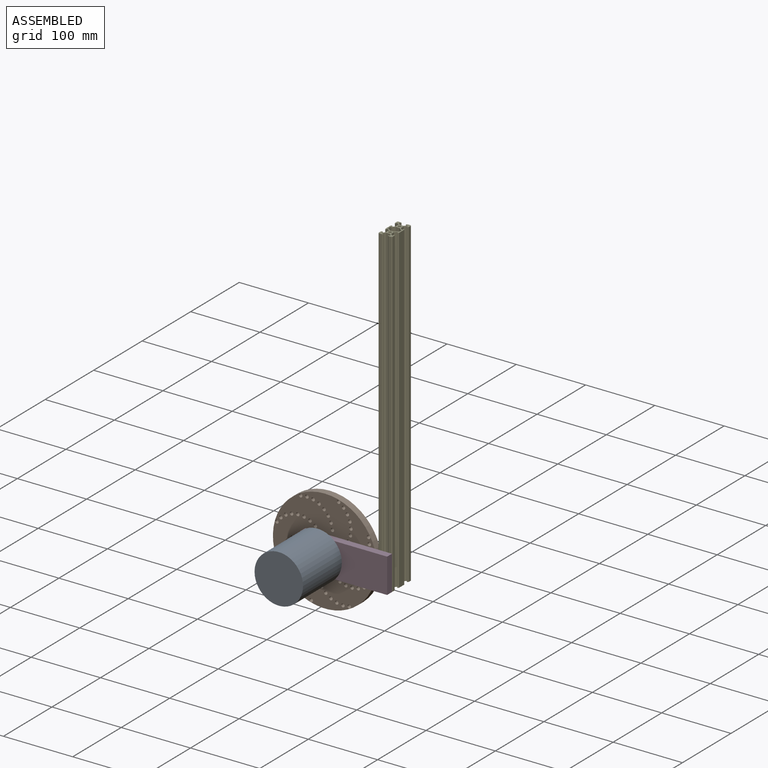
[diagram: assembled view]
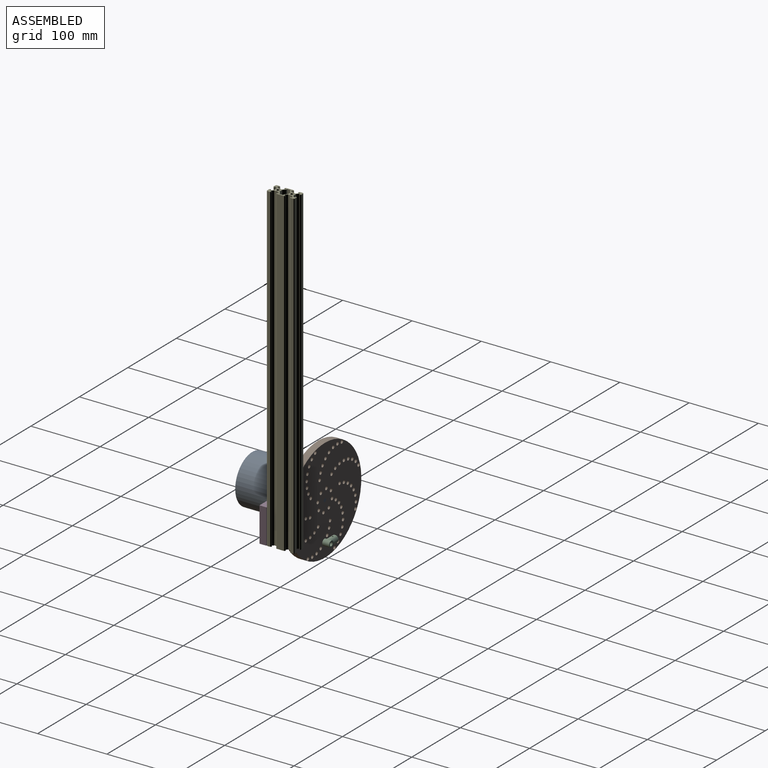
[diagram: assembled view, second angle]
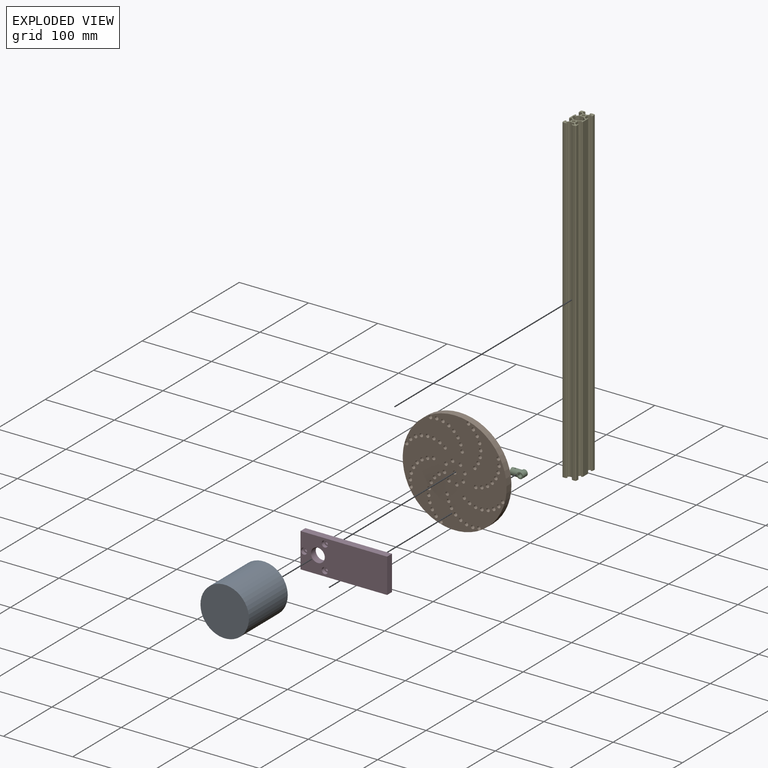
[diagram: exploded view]
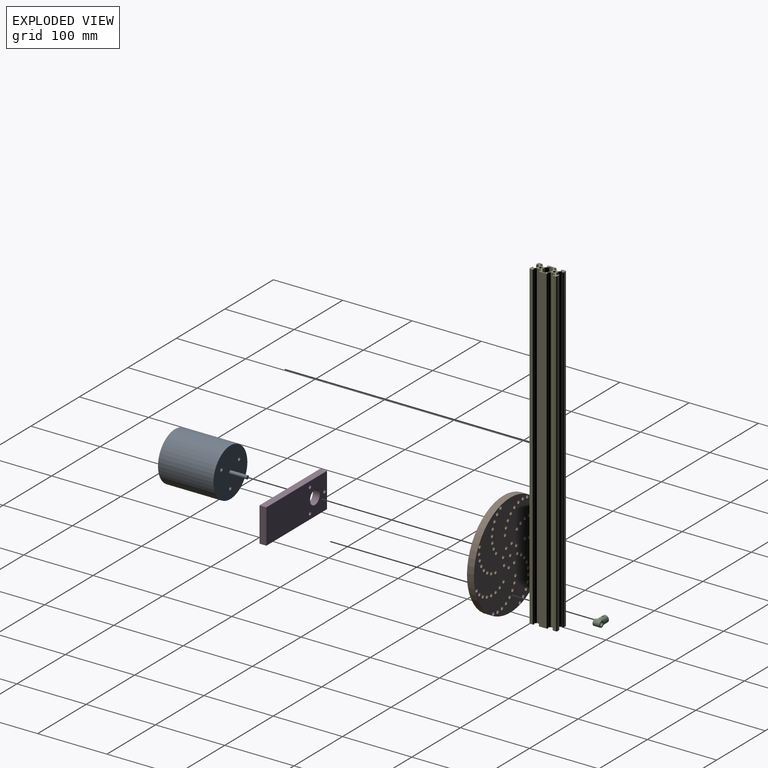
[diagram: exploded view, second angle]
ASSEMBLY  parts=5 mates=6
PART A: 11 faces, bbox 70x70x105 mm
  f0: plane 70x70mm, normal (0,0,-1), area 3848.5mm2, adj f4
  f1: plane 5x5mm, normal (0,0,1), area 19.6mm2, adj f2
  f2: cylinder r=2.5mm len=25mm, axis (0,0,1), area 392.7mm2, adj f1,f3
  f3: plane 70x70mm, normal (0,0,1), area 3769.9mm2, adj f2,f4,f5,f7,f9
  f4: cylinder r=35mm len=80mm, axis (0,0,1), area 17592.9mm2, adj f0,f3
  f5: cylinder r=2.5mm len=25mm, axis (0,0,1), area 392.7mm2, adj f3,f6
  f6: plane 5x5mm, normal (0,0,1), area 19.6mm2, adj f5
  f7: cylinder r=2.5mm len=25mm, axis (0,0,1), area 392.7mm2, adj f3,f8
  f8: plane 5x5mm, normal (0,0,1), area 19.6mm2, adj f7
  f9: cylinder r=2.5mm len=25mm, axis (0,0,1), area 392.7mm2, adj f3,f10
  f10: plane 5x5mm, normal (0,0,1), area 19.6mm2, adj f9
PART B: 77 faces, bbox 150x10x150 mm
  f0: cylinder r=2.5mm len=10mm, axis (0,1,0), area 157.1mm2, adj f75,f76
  f1: cylinder r=2.5mm len=10mm, axis (0,1,0), area 157.1mm2, adj f75,f76
  f2: cylinder r=2.5mm len=10mm, axis (0,1,0), area 157.1mm2, adj f75,f76
  f3: cylinder r=2.5mm len=10mm, axis (0,1,0), area 157.1mm2, adj f75,f76
  f4: cylinder r=2.5mm len=10mm, axis (0,1,0), area 157.1mm2, adj f75,f76
  f5: cylinder r=2.5mm len=10mm, axis (0,1,0), area 157.1mm2, adj f75,f76
  f6: cylinder r=2.5mm len=10mm, axis (0,1,0), area 157.1mm2, adj f75,f76
  f7: cylinder r=2.5mm len=10mm, axis (0,1,0), area 157.1mm2, adj f75,f76
  f8: cylinder r=2.5mm len=10mm, axis (0,1,0), area 157.1mm2, adj f75,f76
  f9: cylinder r=2.5mm len=10mm, axis (0,1,0), area 157.1mm2, adj f75,f76
  f10: cylinder r=2.5mm len=10mm, axis (0,1,0), area 157.1mm2, adj f75,f76
  f11: cylinder r=2.5mm len=10mm, axis (0,1,0), area 157.1mm2, adj f75,f76
  f12: cylinder r=2.5mm len=10mm, axis (0,1,0), area 157.1mm2, adj f75,f76
  f13: cylinder r=2.5mm len=10mm, axis (0,1,0), area 157.1mm2, adj f75,f76
  f14: cylinder r=2.5mm len=10mm, axis (0,1,0), area 157.1mm2, adj f75,f76
  f15: cylinder r=2.5mm len=10mm, axis (0,1,0), area 157.1mm2, adj f75,f76
  f16: cylinder r=2.5mm len=10mm, axis (0,1,0), area 157.1mm2, adj f75,f76
  f17: cylinder r=2.5mm len=10mm, axis (0,1,0), area 157.1mm2, adj f75,f76
  f18: cylinder r=2.5mm len=10mm, axis (0,1,0), area 157.1mm2, adj f75,f76
  f19: cylinder r=2.5mm len=10mm, axis (0,1,0), area 157.1mm2, adj f75,f76
  f20: cylinder r=2.5mm len=10mm, axis (0,1,0), area 157.1mm2, adj f75,f76
  f21: cylinder r=2.5mm len=10mm, axis (0,1,0), area 157.1mm2, adj f75,f76
  f22: cylinder r=2.5mm len=10mm, axis (0,1,0), area 157.1mm2, adj f75,f76
  f23: cylinder r=2.5mm len=10mm, axis (0,1,0), area 157.1mm2, adj f75,f76
  f24: cylinder r=2.5mm len=10mm, axis (0,1,0), area 157.1mm2, adj f75,f76
  f25: cylinder r=2.5mm len=10mm, axis (0,1,0), area 157.1mm2, adj f75,f76
  f26: cylinder r=2.5mm len=10mm, axis (0,1,0), area 157.1mm2, adj f75,f76
  f27: cylinder r=2.5mm len=10mm, axis (0,1,0), area 157.1mm2, adj f75,f76
  f28: cylinder r=2.5mm len=10mm, axis (0,1,0), area 157.1mm2, adj f75,f76
  f29: cylinder r=2.5mm len=10mm, axis (0,1,0), area 157.1mm2, adj f75,f76
  f30: cylinder r=2.5mm len=10mm, axis (0,1,0), area 157.1mm2, adj f75,f76
  f31: cylinder r=2.5mm len=10mm, axis (0,1,0), area 157.1mm2, adj f75,f76
  f32: cylinder r=2.5mm len=10mm, axis (0,1,0), area 157.1mm2, adj f75,f76
  f33: cylinder r=2.5mm len=10mm, axis (0,1,0), area 157.1mm2, adj f75,f76
  f34: cylinder r=2.5mm len=10mm, axis (0,1,0), area 157.1mm2, adj f75,f76
  f35: cylinder r=2.5mm len=10mm, axis (0,1,0), area 157.1mm2, adj f75,f76
  f36: cylinder r=2.5mm len=10mm, axis (0,1,0), area 157.1mm2, adj f75,f76
  f37: cylinder r=2.5mm len=10mm, axis (0,1,0), area 157.1mm2, adj f75,f76
  f38: cylinder r=2.5mm len=10mm, axis (0,1,0), area 157.1mm2, adj f75,f76
  f39: cylinder r=2.5mm len=10mm, axis (0,1,0), area 157.1mm2, adj f75,f76
  f40: cylinder r=2.5mm len=10mm, axis (0,1,0), area 157.1mm2, adj f75,f76
  f41: cylinder r=2.5mm len=10mm, axis (0,1,0), area 157.1mm2, adj f75,f76
  f42: cylinder r=2.5mm len=10mm, axis (0,1,0), area 157.1mm2, adj f75,f76
  f43: cylinder r=2.5mm len=10mm, axis (0,1,0), area 157.1mm2, adj f75,f76
  f44: cylinder r=2.5mm len=10mm, axis (0,1,0), area 157.1mm2, adj f75,f76
  f45: cylinder r=2.5mm len=10mm, axis (0,1,0), area 157.1mm2, adj f75,f76
  f46: cylinder r=2.5mm len=10mm, axis (0,1,0), area 157.1mm2, adj f75,f76
  f47: cylinder r=2.5mm len=10mm, axis (0,1,0), area 157.1mm2, adj f75,f76
  f48: cylinder r=2.5mm len=10mm, axis (0,1,0), area 157.1mm2, adj f75,f76
  f49: cylinder r=2.5mm len=10mm, axis (0,1,0), area 157.1mm2, adj f75,f76
  f50: cylinder r=2.5mm len=10mm, axis (0,1,0), area 157.1mm2, adj f75,f76
  f51: cylinder r=2.5mm len=10mm, axis (0,1,0), area 157.1mm2, adj f75,f76
  f52: cylinder r=2.5mm len=10mm, axis (0,1,0), area 157.1mm2, adj f75,f76
  f53: cylinder r=2.5mm len=10mm, axis (0,1,0), area 157.1mm2, adj f75,f76
  f54: cylinder r=2.5mm len=10mm, axis (0,1,0), area 157.1mm2, adj f75,f76
  f55: cylinder r=2.5mm len=10mm, axis (0,1,0), area 157.1mm2, adj f75,f76
  f56: cylinder r=2.5mm len=10mm, axis (0,1,0), area 157.1mm2, adj f75,f76
  f57: cylinder r=2.5mm len=10mm, axis (0,1,0), area 157.1mm2, adj f75,f76
  f58: cylinder r=2.5mm len=10mm, axis (0,1,0), area 157.1mm2, adj f75,f76
  f59: cylinder r=2.5mm len=10mm, axis (0,1,0), area 157.1mm2, adj f75,f76
  f60: cylinder r=2.5mm len=10mm, axis (0,1,0), area 157.1mm2, adj f75,f76
  f61: cylinder r=2.5mm len=10mm, axis (0,1,0), area 157.1mm2, adj f75,f76
  f62: cylinder r=2.5mm len=10mm, axis (0,1,0), area 157.1mm2, adj f75,f76
  f63: cylinder r=2.5mm len=10mm, axis (0,1,0), area 157.1mm2, adj f75,f76
  f64: cylinder r=2.5mm len=10mm, axis (0,1,0), area 157.1mm2, adj f75,f76
  f65: cylinder r=2.5mm len=10mm, axis (0,1,0), area 157.1mm2, adj f75,f76
  f66: cylinder r=2.5mm len=10mm, axis (0,1,0), area 157.1mm2, adj f75,f76
  f67: cylinder r=2.5mm len=10mm, axis (0,1,0), area 157.1mm2, adj f75,f76
  f68: cylinder r=2.5mm len=10mm, axis (0,1,0), area 157.1mm2, adj f75,f76
  f69: cylinder r=2.5mm len=10mm, axis (0,1,0), area 157.1mm2, adj f75,f76
  f70: cylinder r=2.5mm len=10mm, axis (0,1,0), area 157.1mm2, adj f75,f76
  f71: cylinder r=2.5mm len=10mm, axis (0,1,0), area 157.1mm2, adj f75,f76
  f72: cylinder r=2.5mm len=10mm, axis (0,1,0), area 157.1mm2, adj f75,f76
  f73: cylinder r=2.5mm len=10mm, axis (0,1,0), area 157.1mm2, adj f75,f76
  f74: cylinder r=75mm len=150mm, axis (0,1,0), area 4712.4mm2, adj f75,f76
  f75: plane 150x150mm, normal (0,-1,0), area 16218.5mm2, adj f0,f1,f2,f3,f4,f5,f6,f7
  f76: plane 150x150mm, normal (0,1,0), area 16218.5mm2, adj f0,f1,f2,f3,f4,f5,f6,f7
PART C: 12 faces, bbox 19.5x10x10.8 mm
  f0: cylinder r=4.5mm len=10mm, axis (0,1,0), area 179.9mm2, adj f1,f2,f4,f7,f8
  f1: plane 9x9mm, normal (0,-1,0), area 39.9mm2, adj f0,f9
  f2: plane 9x9mm, normal (0,1,0), area 39.9mm2, adj f0,f9
  f3: cylinder r=4mm len=12.94mm, axis (1,0,0), area 285.4mm2, adj f5,f6,f10,f11
  f4: cylinder r=5mm len=14mm, axis (1,0,0), area 381.7mm2, adj f0,f5,f7,f8,f10,f11
  f5: plane 10x10mm, normal (-1,0,0), area 28.3mm2, adj f3,f4
  f6: cylinder r=4.5mm len=8mm, axis (0,1,0), area 57.9mm2, adj f3
  f7: torus R=4mm, axis (1,0,0), area 3.8mm2, adj f0,f4
  f8: torus R=4mm, axis (1,0,0), area 3.8mm2, adj f0,f4
  f9: cylinder r=2.75mm len=10mm, axis (0,-1,0), area 172.8mm2, adj f1,f2
  f10: cylinder r=1mm len=2mm, axis (0,0,1), area 6.4mm2, adj f3,f4
  f11: cylinder r=1mm len=2mm, axis (0,0,1), area 6.4mm2, adj f3,f4
PART D: 16 faces, bbox 50x10x125 mm
  f0: cylinder r=2.5mm len=5mm, axis (0,1,0), area 78.5mm2, adj f8,f15
  f1: cylinder r=2.5mm len=5mm, axis (0,1,0), area 78.5mm2, adj f8,f13
  f2: cylinder r=2.5mm len=5mm, axis (0,1,0), area 78.5mm2, adj f8,f11
  f3: plane 50x10mm, normal (0,0,-1), area 500mm2, adj f4,f7,f8,f9
  f4: plane 125x10mm, normal (1,0,0), area 1250mm2, adj f3,f5,f8,f9
  f5: plane 50x10mm, normal (0,0,1), area 500mm2, adj f4,f7,f8,f9
  f6: cylinder r=10mm len=20mm, axis (0,1,0), area 628.3mm2, adj f8,f9
  f7: plane 125x10mm, normal (-1,0,0), area 1250mm2, adj f3,f5,f8,f9
  f8: plane 125x50mm, normal (0,-1,0), area 5876.9mm2, adj f0,f1,f2,f3,f4,f5,f6,f7
  f9: plane 125x50mm, normal (0,1,0), area 5745mm2, adj f3,f4,f5,f6,f7,f10,f12,f14
  f10: cylinder r=4.5mm len=9mm, axis (0,1,0), area 141.4mm2, adj f9,f11
  f11: plane 9x9mm, normal (0,1,0), area 44mm2, adj f2,f10
  f12: cylinder r=4.5mm len=9mm, axis (0,1,0), area 141.4mm2, adj f9,f13
  f13: plane 9x9mm, normal (0,1,0), area 44mm2, adj f1,f12
  f14: cylinder r=4.5mm len=9mm, axis (0,1,0), area 141.4mm2, adj f9,f15
  f15: plane 9x9mm, normal (0,1,0), area 44mm2, adj f0,f14
PART E: 132 faces, bbox 20x463x40 mm
  f0: plane 40x20mm, normal (0,-1,0), area 296.9mm2, adj f2,f3,f4,f5,f6,f7,f8,f9
  f1: plane 40x20mm, normal (0,1,0), area 296.9mm2, adj f2,f3,f4,f5,f6,f7,f8,f9
  f2: plane 463x0.61mm, normal (0,0,-1), area 282.4mm2, adj f0,f1,f3,f111
  f3: plane 463x0.99mm, normal (0.71,0,-0.71), area 646.6mm2, adj f0,f1,f2,f4
  f4: cylinder r=0.69mm len=463mm, axis (0,1,0), area 251.3mm2, adj f0,f1,f3,f5
  f5: plane 463x3.64mm, normal (1,0,0), area 1684mm2, adj f0,f1,f4,f6
  f6: cylinder r=1.5mm len=463mm, axis (0,1,0), area 1090.9mm2, adj f0,f1,f5,f7
  f7: plane 463x3.64mm, normal (0,0,1), area 1684mm2, adj f0,f1,f6,f8
  f8: cylinder r=0.69mm len=463mm, axis (0,1,0), area 251.3mm2, adj f0,f1,f7,f9
  f9: plane 463x0.99mm, normal (-0.71,0,0.71), area 646.6mm2, adj f0,f1,f8,f10
  f10: plane 463x0.61mm, normal (-1,0,0), area 282.4mm2, adj f0,f1,f9,f11
  f11: plane 463x2.11mm, normal (0,0,-1), area 978.6mm2, adj f0,f1,f10,f12
  f12: plane 463x1.64mm, normal (-1,0,0), area 758.9mm2, adj f0,f1,f11,f13
  f13: plane 463x2.66mm, normal (-0.71,0,0.71), area 1742mm2, adj f0,f1,f12,f14
  f14: plane 463x2.74mm, normal (0,0,1), area 1268.4mm2, adj f0,f1,f13,f15
  f15: plane 463x0.1mm, normal (-0.71,0,0.71), area 65.5mm2, adj f0,f1,f14,f16
  f16: plane 463x0.1mm, normal (0.71,0,0.71), area 65.5mm2, adj f0,f1,f15,f17
  f17: plane 463x2.74mm, normal (0,0,1), area 1268.4mm2, adj f0,f1,f16,f18
  f18: plane 463x2.66mm, normal (0.71,0,0.71), area 1742mm2, adj f0,f1,f17,f19
  f19: plane 463x1.64mm, normal (1,0,0), area 758.9mm2, adj f0,f1,f18,f20
  f20: plane 463x2.11mm, normal (0,0,-1), area 978.6mm2, adj f0,f1,f19,f21
  f21: plane 463x0.61mm, normal (1,0,0), area 282.4mm2, adj f0,f1,f20,f22
  f22: plane 463x0.99mm, normal (0.71,0,0.71), area 646.6mm2, adj f0,f1,f21,f23
  f23: cylinder r=0.69mm len=463mm, axis (0,1,0), area 251.3mm2, adj f0,f1,f22,f24
  f24: plane 463x3.64mm, normal (0,0,1), area 1684mm2, adj f0,f1,f23,f25
  f25: cylinder r=1.5mm len=463mm, axis (0,1,0), area 1090.9mm2, adj f0,f1,f24,f26
  f26: plane 463x3.64mm, normal (-1,0,0), area 1684mm2, adj f0,f1,f25,f27
  f27: cylinder r=0.69mm len=463mm, axis (0,1,0), area 251.3mm2, adj f0,f1,f26,f28
  f28: plane 463x0.99mm, normal (-0.71,0,-0.71), area 646.6mm2, adj f0,f1,f27,f29
  f29: plane 463x0.61mm, normal (0,0,-1), area 282.4mm2, adj f0,f1,f28,f30
  f30: plane 463x2.11mm, normal (1,0,0), area 978.6mm2, adj f0,f1,f29,f31
  f31: plane 463x1.64mm, normal (0,0,-1), area 758.9mm2, adj f0,f1,f30,f32
  f32: plane 463x2.66mm, normal (-0.71,0,-0.71), area 1742mm2, adj f0,f1,f31,f33
  f33: plane 463x2.74mm, normal (-1,0,0), area 1268.4mm2, adj f0,f1,f32,f34
  f34: plane 463x0.1mm, normal (-0.71,0,-0.71), area 65.5mm2, adj f0,f1,f33,f35
  f35: plane 463x0.1mm, normal (-0.71,0,0.71), area 65.5mm2, adj f0,f1,f34,f36
  f36: plane 463x2.74mm, normal (-1,0,0), area 1268.4mm2, adj f0,f1,f35,f37
  f37: plane 463x2.66mm, normal (-0.71,0,0.71), area 1742mm2, adj f0,f1,f36,f38
  f38: plane 463x1.64mm, normal (0,0,1), area 758.9mm2, adj f0,f1,f37,f39
  f39: plane 463x2.11mm, normal (1,0,0), area 978.6mm2, adj f0,f1,f38,f40
  f40: plane 463x0.61mm, normal (0,0,1), area 282.4mm2, adj f0,f1,f39,f41
  f41: plane 463x0.99mm, normal (-0.71,0,0.71), area 646.6mm2, adj f0,f1,f40,f42
  f42: cylinder r=0.69mm len=463mm, axis (0,1,0), area 251.3mm2, adj f0,f1,f41,f43
  f43: plane 463x10.27mm, normal (-1,0,0), area 4757.1mm2, adj f0,f1,f42,f44
  f44: cylinder r=0.69mm len=463mm, axis (0,1,0), area 251.3mm2, adj f0,f1,f43,f45
  f45: plane 463x0.99mm, normal (-0.71,0,-0.71), area 646.6mm2, adj f0,f1,f44,f46
  f46: plane 463x0.61mm, normal (0,0,-1), area 282.4mm2, adj f0,f1,f45,f47
  f47: plane 463x2.11mm, normal (1,0,0), area 978.6mm2, adj f0,f1,f46,f48
  f48: plane 463x1.64mm, normal (0,0,-1), area 758.9mm2, adj f0,f1,f47,f49
  f49: plane 463x2.66mm, normal (-0.71,0,-0.71), area 1742mm2, adj f0,f1,f48,f50
  f50: plane 463x2.74mm, normal (-1,0,0), area 1268.4mm2, adj f0,f1,f49,f51
  f51: plane 463x0.1mm, normal (-0.71,0,-0.71), area 65.5mm2, adj f0,f1,f50,f52
  f52: plane 463x0.1mm, normal (-0.71,0,0.71), area 65.5mm2, adj f0,f1,f51,f53
  f53: plane 463x2.74mm, normal (-1,0,0), area 1268.4mm2, adj f0,f1,f52,f54
  f54: plane 463x2.66mm, normal (-0.71,0,0.71), area 1742mm2, adj f0,f1,f53,f55
  f55: plane 463x1.64mm, normal (0,0,1), area 758.9mm2, adj f0,f1,f54,f56
  f56: plane 463x2.11mm, normal (1,0,0), area 978.6mm2, adj f0,f1,f55,f57
  f57: plane 463x0.61mm, normal (0,0,1), area 282.4mm2, adj f0,f1,f56,f58
  f58: plane 463x0.99mm, normal (-0.71,0,0.71), area 646.6mm2, adj f0,f1,f57,f59
  f59: cylinder r=0.69mm len=463mm, axis (0,1,0), area 251.3mm2, adj f0,f1,f58,f60
  f60: plane 463x3.64mm, normal (-1,0,0), area 1684mm2, adj f0,f1,f59,f61
  f61: cylinder r=1.5mm len=463mm, axis (0,1,0), area 1090.9mm2, adj f0,f1,f60,f62
  f62: plane 463x3.64mm, normal (0,0,-1), area 1684mm2, adj f0,f1,f61,f63
  f63: cylinder r=0.69mm len=463mm, axis (0,1,0), area 251.3mm2, adj f0,f1,f62,f64
  f64: plane 463x0.99mm, normal (0.71,0,-0.71), area 646.6mm2, adj f0,f1,f63,f65
  f65: plane 463x0.61mm, normal (1,0,0), area 282.4mm2, adj f0,f1,f64,f66
  f66: plane 463x2.11mm, normal (0,0,1), area 978.6mm2, adj f0,f1,f65,f67
  f67: plane 463x1.64mm, normal (1,0,0), area 758.9mm2, adj f0,f1,f66,f68
  f68: plane 463x2.66mm, normal (0.71,0,-0.71), area 1742mm2, adj f0,f1,f67,f69
  f69: plane 463x2.74mm, normal (0,0,-1), area 1268.4mm2, adj f0,f1,f68,f70
  f70: plane 463x0.1mm, normal (0.71,0,-0.71), area 65.5mm2, adj f0,f1,f69,f71
  f71: plane 463x0.1mm, normal (-0.71,0,-0.71), area 65.5mm2, adj f0,f1,f70,f72
  f72: plane 463x2.74mm, normal (0,0,-1), area 1268.4mm2, adj f0,f1,f71,f73
  f73: plane 463x2.66mm, normal (-0.71,0,-0.71), area 1742mm2, adj f0,f1,f72,f74
  f74: plane 463x1.64mm, normal (-1,0,0), area 758.9mm2, adj f0,f1,f73,f75
  f75: plane 463x2.11mm, normal (0,0,1), area 978.6mm2, adj f0,f1,f74,f76
  f76: plane 463x0.61mm, normal (-1,0,0), area 282.4mm2, adj f0,f1,f75,f77
  f77: plane 463x0.99mm, normal (-0.71,0,-0.71), area 646.6mm2, adj f0,f1,f76,f78
  f78: cylinder r=0.69mm len=463mm, axis (0,1,0), area 251.3mm2, adj f0,f1,f77,f79
  f79: plane 463x3.64mm, normal (0,0,-1), area 1684mm2, adj f0,f1,f78,f80
  f80: cylinder r=1.5mm len=463mm, axis (0,1,0), area 1090.9mm2, adj f0,f1,f79,f81
  f81: plane 463x3.64mm, normal (1,0,0), area 1684mm2, adj f0,f1,f80,f82
  f82: cylinder r=0.69mm len=463mm, axis (0,1,0), area 251.3mm2, adj f0,f1,f81,f83
  f83: plane 463x0.99mm, normal (0.71,0,0.71), area 646.6mm2, adj f0,f1,f82,f84
  f84: plane 463x0.61mm, normal (0,0,1), area 282.4mm2, adj f0,f1,f83,f85
  f85: plane 463x2.11mm, normal (-1,0,0), area 978.6mm2, adj f0,f1,f84,f86
  f86: plane 463x1.64mm, normal (0,0,1), area 758.9mm2, adj f0,f1,f85,f87
  f87: plane 463x2.66mm, normal (0.71,0,0.71), area 1742mm2, adj f0,f1,f86,f88
  f88: plane 463x2.74mm, normal (1,0,0), area 1268.4mm2, adj f0,f1,f87,f89
  f89: plane 463x0.1mm, normal (0.71,0,0.71), area 65.5mm2, adj f0,f1,f88,f90
  f90: plane 463x0.1mm, normal (0.71,0,-0.71), area 65.5mm2, adj f0,f1,f89,f91
  f91: plane 463x2.74mm, normal (1,0,0), area 1268.4mm2, adj f0,f1,f90,f92
  f92: plane 463x2.66mm, normal (0.71,0,-0.71), area 1742mm2, adj f0,f1,f91,f93
  f93: plane 463x1.64mm, normal (0,0,-1), area 758.9mm2, adj f0,f1,f92,f94
  f94: plane 463x2.11mm, normal (-1,0,0), area 978.6mm2, adj f0,f1,f93,f95
  f95: plane 463x0.61mm, normal (0,0,-1), area 282.4mm2, adj f0,f1,f94,f96
  f96: plane 463x0.99mm, normal (0.71,0,-0.71), area 646.6mm2, adj f0,f1,f95,f97
  f97: cylinder r=0.69mm len=463mm, axis (0,1,0), area 251.3mm2, adj f0,f1,f96,f98
  f98: plane 463x10.27mm, normal (1,0,0), area 4757.1mm2, adj f0,f1,f97,f99
  f99: cylinder r=0.69mm len=463mm, axis (0,1,0), area 251.3mm2, adj f0,f1,f98,f100
  f100: plane 463x0.99mm, normal (0.71,0,0.71), area 646.6mm2, adj f0,f1,f99,f101
  f101: plane 463x0.61mm, normal (0,0,1), area 282.4mm2, adj f0,f1,f100,f102
  f102: plane 463x2.11mm, normal (-1,0,0), area 978.6mm2, adj f0,f1,f101,f103
  f103: plane 463x1.64mm, normal (0,0,1), area 758.9mm2, adj f0,f1,f102,f104
  f104: plane 463x2.66mm, normal (0.71,0,0.71), area 1742mm2, adj f0,f1,f103,f105
  f105: plane 463x2.74mm, normal (1,0,0), area 1268.4mm2, adj f0,f1,f104,f106
  f106: plane 463x0.1mm, normal (0.71,0,0.71), area 65.5mm2, adj f0,f1,f105,f107
  f107: plane 463x0.1mm, normal (0.71,0,-0.71), area 65.5mm2, adj f0,f1,f106,f108
  f108: plane 463x2.74mm, normal (1,0,0), area 1268.4mm2, adj f0,f1,f107,f109
  f109: plane 463x2.66mm, normal (0.71,0,-0.71), area 1742mm2, adj f0,f1,f108,f110
  f110: plane 463x1.64mm, normal (0,0,-1), area 758.9mm2, adj f0,f1,f109,f111
  f111: plane 463x2.11mm, normal (-1,0,0), area 978.6mm2, adj f0,f1,f2,f110
  f112: cylinder r=2.1mm len=463mm, axis (0,1,0), area 6109.1mm2, adj f0,f1
  f113: plane 463x3.4mm, normal (-0.71,0,-0.71), area 2225.9mm2, adj f0,f1,f114,f130
  f114: plane 463x2.74mm, normal (0,0,-1), area 1268.4mm2, adj f0,f1,f113,f115
  f115: plane 463x0.1mm, normal (-0.71,0,-0.71), area 65.5mm2, adj f0,f1,f114,f116
  f116: plane 463x0.1mm, normal (0.71,0,-0.71), area 65.5mm2, adj f0,f1,f115,f117
  f117: plane 463x2.74mm, normal (0,0,-1), area 1268.4mm2, adj f0,f1,f116,f118
  f118: plane 463x3.4mm, normal (0.71,0,-0.71), area 2225.9mm2, adj f0,f1,f117,f119
  f119: plane 463x1.96mm, normal (0,0,-1), area 907.9mm2, adj f0,f1,f118,f120
  f120: plane 463x5.4mm, normal (1,0,0), area 2500.2mm2, adj f0,f1,f119,f121
  f121: plane 463x1.96mm, normal (0,0,1), area 907.9mm2, adj f0,f1,f120,f122
  f122: plane 463x3.4mm, normal (0.71,0,0.71), area 2225.9mm2, adj f0,f1,f121,f123
  f123: plane 463x2.74mm, normal (0,0,1), area 1268.4mm2, adj f0,f1,f122,f124
  f124: plane 463x0.1mm, normal (0.71,0,0.71), area 65.5mm2, adj f0,f1,f123,f125
  f125: plane 463x0.1mm, normal (-0.71,0,0.71), area 65.5mm2, adj f0,f1,f124,f126
  f126: plane 463x2.74mm, normal (0,0,1), area 1268.4mm2, adj f0,f1,f125,f127
  f127: plane 463x3.4mm, normal (-0.71,0,0.71), area 2225.9mm2, adj f0,f1,f126,f128
  f128: plane 463x1.96mm, normal (0,0,1), area 907.9mm2, adj f0,f1,f127,f129
  f129: plane 463x5.4mm, normal (-1,0,0), area 2500.2mm2, adj f0,f1,f128,f130
  f130: plane 463x1.96mm, normal (0,0,-1), area 907.9mm2, adj f0,f1,f113,f129
  f131: cylinder r=2.1mm len=463mm, axis (0,1,0), area 6109.1mm2, adj f0,f1
PLACE A rot(axis=(-1,0,0),90deg) t=(-83.45,-18.79,-299.59)mm
PLACE B rot(axis=(-1,0,0),180deg) t=(-83.45,-3.79,-299.59)mm
PLACE C rot(axis=(-1,0,0),180deg) t=(-82.26,11.21,-353.76)mm
PLACE D rot(axis=(0.71,0,-0.71),180deg) t=(-45.95,-18.29,-299.59)mm
PLACE E rot(axis=(-1,0,0),90deg) t=(6.55,21.71,-324.59)mm
MATE revolute C.f0 <-> B.f69  axis (0,-1,0) through (-82.26,6.21,-353.76)mm
MATE planar E.f62 <-> D.f8  axis (0,-1,0) through (-0.13,-8.29,-93.09)mm
MATE revolute B.f74 <-> A.f2  axis (0,1,0) through (-83.45,6.21,-299.59)mm
MATE planar D.f3 <-> E.f98  axis (1,0,0) through (16.55,-13.29,-299.59)mm
MATE planar D.f4 <-> E.f61  axis (0,0,-1) through (16.55,-13.29,-324.59)mm
MATE revolute D.f6 <-> A.f2  axis (0,1,0) through (-83.45,-8.29,-299.59)mm
